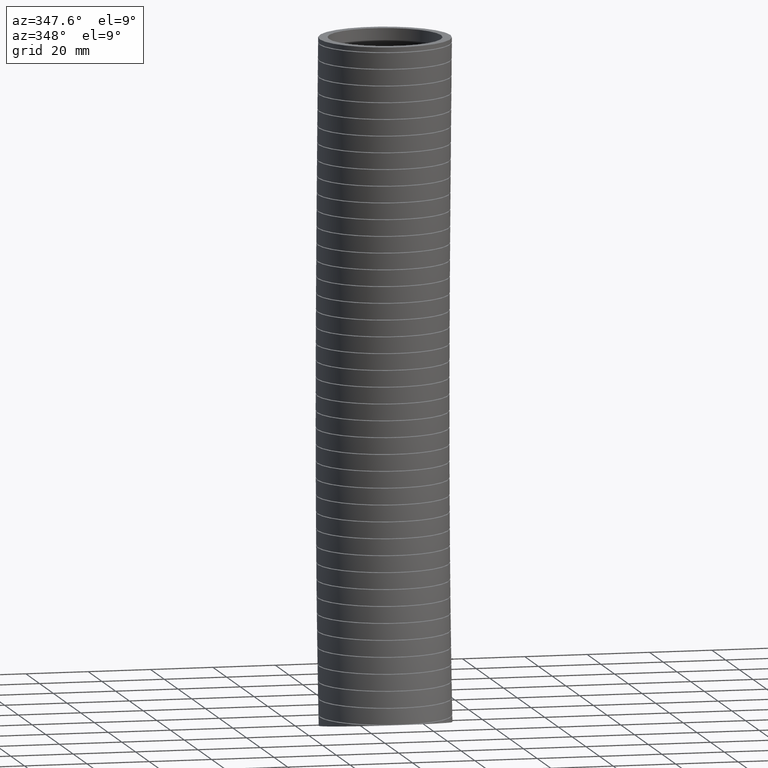
[diagram: clean part render]
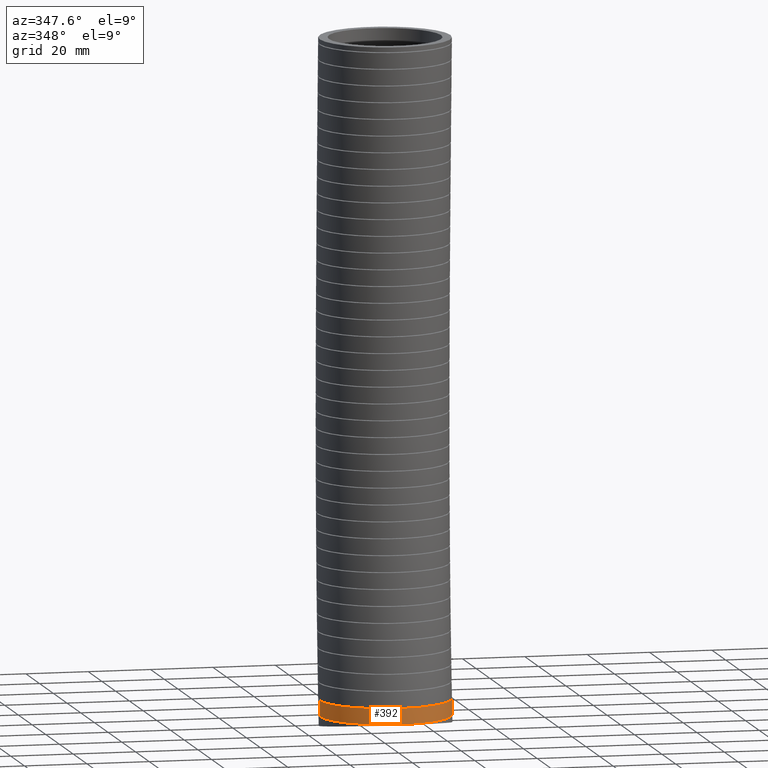
[diagram: same view with one face highlighted and labeled with its STEP entity id]
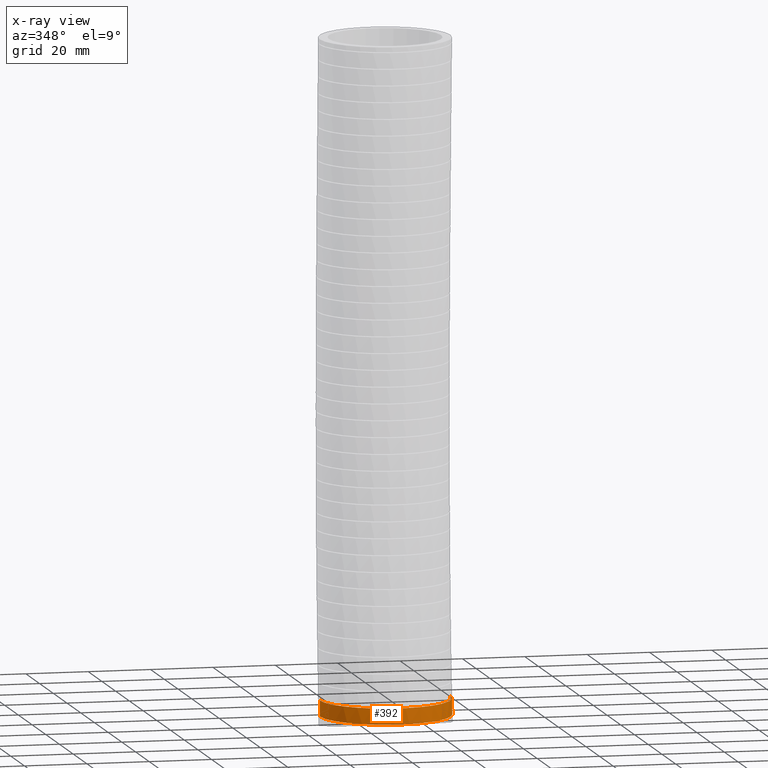
[diagram: x-ray of the same camera — body ghosted, the highlighted face saturated]
A machine part, auxiliary view. The second image highlights one B-rep face of the part: STEP entity #392.
The next image is the same camera in x-ray: the body ghosted, the highlighted face saturated — about 0% of this face is hidden behind the body in this view.
In plain terms, the highlighted face is a freeform B-spline surface patch.
Its self-contained STEP definition (entity closure, byte-faithful):
#384 = VERTEX_POINT ( 'NONE', #10039 ) ;
#391 = EDGE_LOOP ( 'NONE', ( #14294, #14291, #14284, #14384 ) ) ;
#392 = ADVANCED_FACE ( 'NONE', ( #10067 ), #10091, .T. ) ;
#420 = EDGE_CURVE ( 'NONE', #384, #14385, #10378, .T. ) ;
#3013 = CARTESIAN_POINT ( 'NONE',  ( 0.2660114866178837100, -0.7852401986511705600, -8.253512052485426400 ) ) ;
#3014 = CARTESIAN_POINT ( 'NONE',  ( 0.3166884821591571300, -0.7669987444412618100, -8.253512052485421100 ) ) ;
#3015 = CARTESIAN_POINT ( 'NONE',  ( 0.2272468018940634900, -0.7970709957435805300, -8.253512052485424600 ) ) ;
#3226 = CARTESIAN_POINT ( 'NONE',  ( 0.1878457246934009100, -0.8073461663525042200, -8.253512052485426400 ) ) ;
#3227 = CARTESIAN_POINT ( 'NONE',  ( 0.1078240802176524300, -0.8236799574446376200, -8.253512052485426400 ) ) ;
#3228 = CARTESIAN_POINT ( 'NONE',  ( 0.1745063647585848600, -0.8103576946499535500, -8.253512052485426400 ) ) ;
#3241 = CARTESIAN_POINT ( 'NONE',  ( 0.2141988600702511600, -0.8007056651911342900, -8.253512052485426400 ) ) ;
#3446 = B_SPLINE_CURVE_WITH_KNOTS ( 'NONE', 3,
 ( #3535, #3534, #3533, #3532, #3531, #3530, #3529, #3528, #3527, #3526, #3525, #3524, #3523, #3522, #3521, #3520, #3519, #3518, #3517, #3516, #3515, #3514, #3513, #3512, #3511, #3510, #3509, #3508, #3507, #3506, #3505, #3504, #3503, #3502, #3501, #3500, #3499, #3498, #3497, #3496, #3495, #3494, #3493, #3492, #3491, #3490, #3489, #3488, #3487, #3486, #3567, #3566, #3565, #3564, #3563, #3562, #3561 ),
 .UNSPECIFIED., .F., .F.,
 ( 4, 2, 2, 1, 2, 2, 2, 2, 2, 2, 2, 2, 2, 2, 2, 2, 2, 2, 2, 2, 2, 2, 2, 2, 2, 2, 2, 2, 4 ),
 ( 0.06561303583584253400, 0.06971303511565171700, 0.07176303475555631500, 0.07381303439546091400, 0.07586303403536551200, 0.07688803385531782500, 0.07791303367527012400, 0.08201303295507932100, 0.08406303259498393300, 0.08508803241493624600, 0.08611303223488854500, 0.09021303151469778300, 0.09123803133465008300, 0.09226303115460238200, 0.09431303079450698000, 0.09841303007431619100, 0.1004630297142208000, 0.1025130293541254000, 0.1045630289940300000, 0.1066130286339346000, 0.1107130279137437900, 0.1127630275536483900, 0.1148130271935529900, 0.1189130264733622200, 0.1209630261132668100, 0.1230130257531714100, 0.1250630253930760100, 0.1271130250329806100, 0.1312130243127898300 ),
 .UNSPECIFIED. ) ;
#3486 = CARTESIAN_POINT ( 'NONE',  ( 0.7517612862760633100, -0.3613063071378663800, -8.452678838414852800 ) ) ;
#3487 = CARTESIAN_POINT ( 'NONE',  ( 0.7402648051563509600, -0.3856885052039248900, -8.452678838414851000 ) ) ;
#3488 = CARTESIAN_POINT ( 'NONE',  ( 0.7147966364128981500, -0.4334681139840518800, -8.452678838414849200 ) ) ;
#3489 = CARTESIAN_POINT ( 'NONE',  ( 0.7007391407061752700, -0.4569805859580625700, -8.452678838414852800 ) ) ;
#3490 = CARTESIAN_POINT ( 'NONE',  ( 0.6555886164041525600, -0.5246758009390567500, -8.452678838414854600 ) ) ;
#3491 = CARTESIAN_POINT ( 'NONE',  ( 0.6214679751755489700, -0.5663151874723301200, -8.452678838414845700 ) ) ;
#3492 = CARTESIAN_POINT ( 'NONE',  ( 0.5643481398266109200, -0.6236176357193743400, -8.452678838414845700 ) ) ;
#3493 = CARTESIAN_POINT ( 'NONE',  ( 0.5443114100527342000, -0.6418529591773410900, -8.452678838414849200 ) ) ;
#3494 = CARTESIAN_POINT ( 'NONE',  ( 0.5021713740973236000, -0.6765292299208696100, -8.452678838414849200 ) ) ;
#3495 = CARTESIAN_POINT ( 'NONE',  ( 0.4804072588000127800, -0.6926898628249683600, -8.452678838414849200 ) ) ;
#3496 = CARTESIAN_POINT ( 'NONE',  ( 0.4131666543945550200, -0.7377083666195927100, -8.452678838414849200 ) ) ;
#3497 = CARTESIAN_POINT ( 'NONE',  ( 0.3657319659583045900, -0.7631585773129367900, -8.452678838414852800 ) ) ;
#3498 = CARTESIAN_POINT ( 'NONE',  ( 0.2905986064364031200, -0.7943684153911645400, -8.452678838414852800 ) ) ;
#3499 = CARTESIAN_POINT ( 'NONE',  ( 0.2648056543302631500, -0.8036117436114409400, -8.452678838414845700 ) ) ;
#3500 = CARTESIAN_POINT ( 'NONE',  ( 0.2129877701141346700, -0.8193371267619337100, -8.452678838414847500 ) ) ;
#3501 = CARTESIAN_POINT ( 'NONE',  ( 0.1868358130670306800, -0.8258808188212677400, -8.452678838414852800 ) ) ;
#3502 = CARTESIAN_POINT ( 'NONE',  ( 0.1340546719176144200, -0.8363779825308986800, -8.452678838414852800 ) ) ;
#3503 = CARTESIAN_POINT ( 'NONE',  ( 0.1074254789561544700, -0.8403314060968639600, -8.452678838414845700 ) ) ;
#3504 = CARTESIAN_POINT ( 'NONE',  ( 0.05368476953004903300, -0.8456203710947584100, -8.452678838414845700 ) ) ;
#3505 = CARTESIAN_POINT ( 'NONE',  ( 0.02646815025527477600, -0.8469551714716091500, -8.452678838414845700 ) ) ;
#3506 = CARTESIAN_POINT ( 'NONE',  ( -0.05521592254321496000, -0.8468797017051454800, -8.452678838414845700 ) ) ;
#3507 = CARTESIAN_POINT ( 'NONE',  ( -0.1088322865032980000, -0.8414744121427374400, -8.452678838414854600 ) ) ;
#3508 = CARTESIAN_POINT ( 'NONE',  ( -0.1880390232818968400, -0.8256000622703376600, -8.452678838414851000 ) ) ;
#3509 = CARTESIAN_POINT ( 'NONE',  ( -0.2142368153969360900, -0.8190047375225644200, -8.452678838414852800 ) ) ;
#3510 = CARTESIAN_POINT ( 'NONE',  ( -0.2532185180556310600, -0.8071029722906075700, -8.452678838414852800 ) ) ;
#3511 = CARTESIAN_POINT ( 'NONE',  ( -0.2661926652453043300, -0.8027873317187731500, -8.452678838414849200 ) ) ;
#3512 = CARTESIAN_POINT ( 'NONE',  ( -0.2917797609786926300, -0.7935644118246439900, -8.452678838414851000 ) ) ;
#3513 = CARTESIAN_POINT ( 'NONE',  ( -0.3044119531444088300, -0.7886531854490621600, -8.452678838414843900 ) ) ;
#3514 = CARTESIAN_POINT ( 'NONE',  ( -0.3667810429785858300, -0.7626259165837074900, -8.452678838414845700 ) ) ;
#3515 = CARTESIAN_POINT ( 'NONE',  ( -0.4141648982202593700, -0.7371383946844151100, -8.452678838414856300 ) ) ;
#3516 = CARTESIAN_POINT ( 'NONE',  ( -0.4702608822201095300, -0.6994569572939385300, -8.452678838414854600 ) ) ;
#3517 = CARTESIAN_POINT ( 'NONE',  ( -0.4813219781903215200, -0.6916269502831804400, -8.452678838414852800 ) ) ;
#3518 = CARTESIAN_POINT ( 'NONE',  ( -0.5031223050708373300, -0.6753689757378813500, -8.452678838414852800 ) ) ;
#3519 = CARTESIAN_POINT ( 'NONE',  ( -0.5138773077335983000, -0.6669257303277632600, -8.452678838414854600 ) ) ;
#3520 = CARTESIAN_POINT ( 'NONE',  ( -0.5453071330054176700, -0.6409705037914058500, -8.452678838414851000 ) ) ;
#3521 = CARTESIAN_POINT ( 'NONE',  ( -0.5652607172912576000, -0.6227567963804386800, -8.452678838414845700 ) ) ;
#3522 = CARTESIAN_POINT ( 'NONE',  ( -0.6222063910836058700, -0.5654613266719238400, -8.452678838414845700 ) ) ;
#3523 = CARTESIAN_POINT ( 'NONE',  ( -0.6563113387841387200, -0.5237506553831984300, -8.452678838414851000 ) ) ;
#3524 = CARTESIAN_POINT ( 'NONE',  ( -0.6939712697786273300, -0.4670857033635010800, -8.452678838414849200 ) ) ;
#3525 = CARTESIAN_POINT ( 'NONE',  ( -0.7012517559058930600, -0.4555207020711346500, -8.452678838414849200 ) ) ;
#3526 = CARTESIAN_POINT ( 'NONE',  ( -0.7151487981812959500, -0.4321911687129442200, -8.452678838414849200 ) ) ;
#3527 = CARTESIAN_POINT ( 'NONE',  ( -0.7217871383867902100, -0.4203950546688016700, -8.452678838414849200 ) ) ;
#3528 = CARTESIAN_POINT ( 'NONE',  ( -0.7407872674735331800, -0.3846192980332313600, -8.452678838414847500 ) ) ;
#3529 = CARTESIAN_POINT ( 'NONE',  ( -0.7636853620234660400, -0.3358870046315846100, -8.452678838414856300 ) ) ;
#3530 = CARTESIAN_POINT ( 'NONE',  ( -0.7817711915215694900, -0.2851169382115612500, -8.452678838414849200 ) ) ;
#3531 = CARTESIAN_POINT ( 'NONE',  ( -0.7974106436976690100, -0.2333109434613521700, -8.452678838414851000 ) ) ;
#3532 = CARTESIAN_POINT ( 'NONE',  ( -0.8040305729221762800, -0.2067406596302411600, -8.452678838414843900 ) ) ;
#3533 = CARTESIAN_POINT ( 'NONE',  ( -0.8197979521777237800, -0.1268672117540548000, -8.452678838414843900 ) ) ;
#3534 = CARTESIAN_POINT ( 'NONE',  ( -0.8249999999999998400, -0.07328256804623414800, -8.452678838414845700 ) ) ;
#3535 = CARTESIAN_POINT ( 'NONE',  ( -0.8250000000000000700, -0.01936904162359057500, -8.452678838414849200 ) ) ;
#3536 = CARTESIAN_POINT ( 'NONE',  ( 0.3653735529549982400, -0.7438881395109066000, -8.253512052485422900 ) ) ;
#3537 = CARTESIAN_POINT ( 'NONE',  ( 0.4130470368935885200, -0.7183047660253761800, -8.253512052485422900 ) ) ;
#3538 = CARTESIAN_POINT ( 'NONE',  ( 0.4365034042029406500, -0.7041863660046052700, -8.253512052485422900 ) ) ;
#3539 = CARTESIAN_POINT ( 'NONE',  ( 0.5041248593796451300, -0.6587699136254999700, -8.253512052485422900 ) ) ;
#3540 = CARTESIAN_POINT ( 'NONE',  ( 0.5456447946343462300, -0.6244862024572487300, -8.253512052485421100 ) ) ;
#3541 = CARTESIAN_POINT ( 'NONE',  ( 0.6027080793975577700, -0.5671920691930070200, -8.253512052485422900 ) ) ;
#3542 = CARTESIAN_POINT ( 'NONE',  ( 0.6208535171698110800, -0.5471089321114908100, -8.253512052485426400 ) ) ;
#3543 = CARTESIAN_POINT ( 'NONE',  ( 0.6553366577157763200, -0.5049090007335561600, -8.253512052485428200 ) ) ;
#3544 = CARTESIAN_POINT ( 'NONE',  ( 0.6714863381446203300, -0.4830093500471307500, -8.253512052485428200 ) ) ;
#3545 = CARTESIAN_POINT ( 'NONE',  ( 0.7163164712181551200, -0.4155724140561278800, -8.253512052485431700 ) ) ;
#3546 = CARTESIAN_POINT ( 'NONE',  ( 0.7416124470749966300, -0.3680701160237900800, -8.253512052485437100 ) ) ;
#3547 = CARTESIAN_POINT ( 'NONE',  ( 0.7726104292991010600, -0.2929670082533872300, -8.253512052485435300 ) ) ;
#3548 = CARTESIAN_POINT ( 'NONE',  ( 0.7818078410346915900, -0.2671543194575386500, -8.253512052485431700 ) ) ;
#3549 = CARTESIAN_POINT ( 'NONE',  ( 0.7974735176293100700, -0.2152348452504054300, -8.253512052485430000 ) ) ;
#3550 = CARTESIAN_POINT ( 'NONE',  ( 0.8039881442929452900, -0.1890507273266972000, -8.253512052485422900 ) ) ;
#3551 = CARTESIAN_POINT ( 'NONE',  ( 0.8196656148960583800, -0.1098402484963818000, -8.253512052485424600 ) ) ;
#3552 = CARTESIAN_POINT ( 'NONE',  ( 0.8250000000000001800, -0.05616222232491702200, -8.253512052485451300 ) ) ;
#3553 = CARTESIAN_POINT ( 'NONE',  ( 0.8250000000000000700, -0.001576198018707713600, -8.253512052485451300 ) ) ;
#3554 = B_SPLINE_CURVE_WITH_KNOTS ( 'NONE', 3,
 ( #3553, #3552, #3551, #3550, #3549, #3548, #3547, #3546, #3545, #3544, #3543, #3542, #3541, #3540, #3539, #3538, #3537, #3536, #3014, #3013, #3015, #3241, #3226, #3228, #3227, #3613, #3612, #3611, #3610, #3609, #3608, #3607, #3606, #3605, #3604, #3603, #3602, #3601, #3600, #3599, #3598, #3597, #3596, #3595, #3594, #3593, #3592, #3591, #3590, #3589, #3588, #3587, #3586 ),
 .UNSPECIFIED., .F., .F.,
 ( 4, 2, 2, 2, 2, 2, 2, 2, 2, 1, 2, 2, 2, 2, 2, 2, 2, 2, 2, 2, 2, 2, 2, 2, 2, 2, 4 ),
 ( 0.0000000000000000000, 0.004100476595546212600, 0.006150714893319316800, 0.008200953191092420100, 0.01230142978663862800, 0.01435166808441173600, 0.01640190638218484400, 0.02050238297773106200, 0.02255262127550417700, 0.02460285957327728800, 0.02665309787105040600, 0.02767821701993697000, 0.02870333616882353100, 0.03280381276436977100, 0.03485405106214289200, 0.03587917021102944600, 0.03690428935991601400, 0.04100476595546224300, 0.04305500425323536400, 0.04510524255100848600, 0.04920571914655472200, 0.05330619574210095800, 0.05535643403987408600, 0.05740667233764720800, 0.06150714893319343700, 0.06355738723096655800, 0.06560762552873968000 ),
 .UNSPECIFIED. ) ;
#3555 = CARTESIAN_POINT ( 'NONE',  ( -0.8250000000000000700, -0.01936904162359057500, -8.452678838414849200 ) ) ;
#3556 = CARTESIAN_POINT ( 'NONE',  ( -0.8250000000000000700, -0.01337053473200914200, -8.386292782602767600 ) ) ;
#3557 = CARTESIAN_POINT ( 'NONE',  ( -0.8250000000000000700, -0.007415173310095325000, -8.319904892103979300 ) ) ;
#3558 = CARTESIAN_POINT ( 'NONE',  ( -0.8250000000000000700, -0.001576198018703033700, -8.253512052485426400 ) ) ;
#3559 = CARTESIAN_POINT ( 'NONE',  ( -0.8250000000000000700, -0.01936904162359057500, -8.452678838414849200 ) ) ;
#3560 = B_SPLINE_CURVE_WITH_KNOTS ( 'NONE', 3,
 ( #3558, #3557, #3556, #3555 ),
 .UNSPECIFIED., .F., .F.,
 ( 4, 4 ),
 ( 0.9629347331867588200, 0.9862595453808190600 ),
 .UNSPECIFIED. ) ;
#3561 = CARTESIAN_POINT ( 'NONE',  ( 0.8250000000000001800, -0.01936904162359084600, -8.452678838414849200 ) ) ;
#3562 = CARTESIAN_POINT ( 'NONE',  ( 0.8250000000000001800, -0.07394850050133734700, -8.452678838414849200 ) ) ;
#3563 = CARTESIAN_POINT ( 'NONE',  ( 0.8196691510033966600, -0.1279652428689745100, -8.452678838414852800 ) ) ;
#3564 = CARTESIAN_POINT ( 'NONE',  ( 0.8037070400857240200, -0.2081485590699897700, -8.452678838414851000 ) ) ;
#3565 = CARTESIAN_POINT ( 'NONE',  ( 0.7970761385703133400, -0.2345543257309841700, -8.452678838414849200 ) ) ;
#3566 = CARTESIAN_POINT ( 'NONE',  ( 0.7813932852432323700, -0.2862271267928764300, -8.452678838414852800 ) ) ;
#3567 = CARTESIAN_POINT ( 'NONE',  ( 0.7723255531828545600, -0.3115756286202137600, -8.452678838414849200 ) ) ;
#3585 = CARTESIAN_POINT ( 'NONE',  ( -0.8250000000000000700, -0.001576198018703033700, -8.253512052485426400 ) ) ;
#3586 = CARTESIAN_POINT ( 'NONE',  ( -0.8250000000000000700, -0.001576198018703033700, -8.253512052485426400 ) ) ;
#3587 = CARTESIAN_POINT ( 'NONE',  ( -0.8249999999999999600, -0.02853608689209442100, -8.253512052485422900 ) ) ;
#3588 = CARTESIAN_POINT ( 'NONE',  ( -0.8236892456196286400, -0.05557892722560254400, -8.253512052485428200 ) ) ;
#3589 = CARTESIAN_POINT ( 'NONE',  ( -0.8183578504319968200, -0.1098361038183455200, -8.253512052485428200 ) ) ;
#3590 = CARTESIAN_POINT ( 'NONE',  ( -0.8143629334516334600, -0.1367249430654125000, -8.253512052485422900 ) ) ;
#3591 = CARTESIAN_POINT ( 'NONE',  ( -0.7985892902581494000, -0.2161397829348680500, -8.253512052485421100 ) ) ;
#3592 = CARTESIAN_POINT ( 'NONE',  ( -0.7830340021336251700, -0.2676683183112151800, -8.253512052485426400 ) ) ;
#3593 = CARTESIAN_POINT ( 'NONE',  ( -0.7520463609820413600, -0.3428122983622542400, -8.253512052485426400 ) ) ;
#3594 = CARTESIAN_POINT ( 'NONE',  ( -0.7403654532473147300, -0.3676033006954446100, -8.253512052485422900 ) ) ;
#3595 = CARTESIAN_POINT ( 'NONE',  ( -0.7148722545493820800, -0.4154457377742035200, -8.253512052485428200 ) ) ;
#3596 = CARTESIAN_POINT ( 'NONE',  ( -0.7010298665548992900, -0.4386008551753409800, -8.253512052485421100 ) ) ;
#3597 = CARTESIAN_POINT ( 'NONE',  ( -0.6562815469420958400, -0.5058141937224798200, -8.253512052485424600 ) ) ;
#3598 = CARTESIAN_POINT ( 'NONE',  ( -0.6221224697009103400, -0.5477067324698897700, -8.253512052485421100 ) ) ;
#3599 = CARTESIAN_POINT ( 'NONE',  ( -0.5451368280800793500, -0.6249886185105390000, -8.253512052485421100 ) ) ;
#3600 = CARTESIAN_POINT ( 'NONE',  ( -0.5034765541459772500, -0.6592318427337920900, -8.253512052485431700 ) ) ;
#3601 = CARTESIAN_POINT ( 'NONE',  ( -0.4364064059038842400, -0.7042381328792124400, -8.253512052485428200 ) ) ;
#3602 = CARTESIAN_POINT ( 'NONE',  ( -0.4132807832183860200, -0.7181726731390303300, -8.253512052485428200 ) ) ;
#3603 = CARTESIAN_POINT ( 'NONE',  ( -0.3654526065601439400, -0.7438523288770472200, -8.253512052485426400 ) ) ;
#3604 = CARTESIAN_POINT ( 'NONE',  ( -0.3407101442258594900, -0.7555949493008077300, -8.253512052485422900 ) ) ;
#3605 = CARTESIAN_POINT ( 'NONE',  ( -0.2657386831681262700, -0.7867418078153598500, -8.253512052485422900 ) ) ;
#3606 = CARTESIAN_POINT ( 'NONE',  ( -0.2142519724278507700, -0.8024105093783966400, -8.253512052485430000 ) ) ;
#3607 = CARTESIAN_POINT ( 'NONE',  ( -0.1480187011743164000, -0.8156512128309034700, -8.253512052485430000 ) ) ;
#3608 = CARTESIAN_POINT ( 'NONE',  ( -0.1346774581393515000, -0.8179792363181480600, -8.253512052485428200 ) ) ;
#3609 = CARTESIAN_POINT ( 'NONE',  ( -0.1078025082052426100, -0.8219839270624870200, -8.253512052485428200 ) ) ;
#3610 = CARTESIAN_POINT ( 'NONE',  ( -0.09423237815913035300, -0.8236632217149517700, -8.253512052485424600 ) ) ;
#3611 = CARTESIAN_POINT ( 'NONE',  ( -0.05362004168180896400, -0.8276665990515816900, -8.253512052485424600 ) ) ;
#3612 = CARTESIAN_POINT ( 'NONE',  ( -0.02661347977902617900, -0.8289760273084709800, -8.253512052485424600 ) ) ;
#3613 = CARTESIAN_POINT ( 'NONE',  ( 0.05420715357854194400, -0.8289439241214984200, -8.253512052485426400 ) ) ;
#4279 = CARTESIAN_POINT ( 'NONE',  ( 0.8250000000000001800, -0.01936904162359084600, -8.452678838414849200 ) ) ;
#10039 = CARTESIAN_POINT ( 'NONE',  ( 0.8250000000000000700, -0.001576198018707713600, -8.253512052485451300 ) ) ;
#10067 = FACE_OUTER_BOUND ( 'NONE', #391, .T. ) ;
#10073 = CARTESIAN_POINT ( 'NONE',  ( -0.8250000000000000700, -1.665025278502830100, -8.348206540545621800 ) ) ;
#10074 = CARTESIAN_POINT ( 'NONE',  ( -0.8250000000000000700, -1.648591599368976800, -8.166663012797107200 ) ) ;
#10075 = CARTESIAN_POINT ( 'NONE',  ( -0.8250000000000000700, -1.540263497031813400, -6.969958021029444100 ) ) ;
#10076 = CARTESIAN_POINT ( 'NONE',  ( -0.8250000000000002900, -1.462666226150585200, -4.236240238818020000 ) ) ;
#10077 = CARTESIAN_POINT ( 'NONE',  ( -0.8250000000000002900, -1.579745949996089300, -1.588677938051519200 ) ) ;
#10078 = CARTESIAN_POINT ( 'NONE',  ( -0.8250000000000000700, -1.649999999999999900, 0.0000000000000000000 ) ) ;
#10079 = CARTESIAN_POINT ( 'NONE',  ( 0.8249999999999999600, -1.665025278502830100, -8.348206540545621800 ) ) ;
#10080 = CARTESIAN_POINT ( 'NONE',  ( 0.8250000000000000700, -1.648591599368976800, -8.166663012797107200 ) ) ;
#10081 = CARTESIAN_POINT ( 'NONE',  ( 0.8250000000000000700, -1.540263497031813400, -6.969958021029444100 ) ) ;
#10082 = CARTESIAN_POINT ( 'NONE',  ( 0.8250000000000000700, -1.462666226150585200, -4.236240238818020000 ) ) ;
#10083 = CARTESIAN_POINT ( 'NONE',  ( 0.8250000000000000700, -1.579745949996089300, -1.588677938051519200 ) ) ;
#10084 = CARTESIAN_POINT ( 'NONE',  ( 0.8249999999999999600, -1.649999999999999900, 0.0000000000000000000 ) ) ;
#10085 = CARTESIAN_POINT ( 'NONE',  ( 0.8249999999999999600, -0.03000000000000003000, -8.570000000000000300 ) ) ;
#10086 = CARTESIAN_POINT ( 'NONE',  ( 0.8250000000000000700, -0.01276117587204244800, -8.380024330009550900 ) ) ;
#10087 = CARTESIAN_POINT ( 'NONE',  ( 0.8250000000000000700, 0.1008743094684736900, -7.127736047350903300 ) ) ;
#10088 = CARTESIAN_POINT ( 'NONE',  ( 0.8249999999999999600, 0.1896261967179030400, -4.274418168908688600 ) ) ;
#10089 = CARTESIAN_POINT ( 'NONE',  ( 0.8249999999999999600, 0.07111375611842187000, -1.602995453545504200 ) ) ;
#10090 = CARTESIAN_POINT ( 'NONE',  ( 0.8249999999999999600, 0.0000000000000000000, 0.0000000000000000000 ) ) ;
#10091 =( BOUNDED_SURFACE ( )  B_SPLINE_SURFACE ( 3, 3, ( 
 ( #10090, #10089, #10088, #10087, #10086, #10085 ),
 ( #10084, #10083, #10082, #10081, #10080, #10079 ),
 ( #10078, #10077, #10076, #10075, #10074, #10073 ),
 ( #10124, #10123, #10122, #10121, #10120, #10119 ),
 ( #10118, #10117, #10116, #10115, #10114, #10113 ),
 ( #10112, #10111, #10110, #10109, #10108, #10107 ),
 ( #10106, #10105, #10104, #10103, #10102, #10101 ) ),
 .UNSPECIFIED., .F., .F., .F. ) 
 B_SPLINE_SURFACE_WITH_KNOTS ( ( 4, 3, 4 ),
 ( 4, 1, 1, 4 ),
 ( 0.0000000000000000000, 0.5000000000000000000, 1.000000000000000000 ),
 ( 0.0000000000000000000, 0.5600000000000000500, 0.9332507570714188000, 1.000000000000000000 ),
 .UNSPECIFIED. ) 
 GEOMETRIC_REPRESENTATION_ITEM ( )  RATIONAL_B_SPLINE_SURFACE ( (
 ( 1.000000000000000000, 1.000000000000000000, 1.000000000000000000, 1.000000000000000000, 1.000000000000000000, 1.000000000000000000),
 ( 0.3333333333333333100, 0.3333333333333333100, 0.3333333333333333100, 0.3333333333333333100, 0.3333333333333333100, 0.3333333333333333100),
 ( 0.3333333333333333100, 0.3333333333333333100, 0.3333333333333333100, 0.3333333333333333100, 0.3333333333333333100, 0.3333333333333333100),
 ( 1.000000000000000000, 1.000000000000000000, 1.000000000000000000, 1.000000000000000000, 1.000000000000000000, 1.000000000000000000),
 ( 0.3333333333333333100, 0.3333333333333333100, 0.3333333333333333100, 0.3333333333333333100, 0.3333333333333333100, 0.3333333333333333100),
 ( 0.3333333333333333100, 0.3333333333333333100, 0.3333333333333333100, 0.3333333333333333100, 0.3333333333333333100, 0.3333333333333333100),
 ( 1.000000000000000000, 1.000000000000000000, 1.000000000000000000, 1.000000000000000000, 1.000000000000000000, 1.000000000000000000) ) ) 
 REPRESENTATION_ITEM ( '' )  SURFACE ( )  );
#10101 = CARTESIAN_POINT ( 'NONE',  ( 0.8249999999999999600, -0.03000000000000003000, -8.570000000000000300 ) ) ;
#10102 = CARTESIAN_POINT ( 'NONE',  ( 0.8250000000000000700, -0.01276117587204244800, -8.380024330009550900 ) ) ;
#10103 = CARTESIAN_POINT ( 'NONE',  ( 0.8250000000000000700, 0.1008743094684736900, -7.127736047350903300 ) ) ;
#10104 = CARTESIAN_POINT ( 'NONE',  ( 0.8249999999999999600, 0.1896261967179030400, -4.274418168908688600 ) ) ;
#10105 = CARTESIAN_POINT ( 'NONE',  ( 0.8249999999999999600, 0.07111375611842187000, -1.602995453545504200 ) ) ;
#10106 = CARTESIAN_POINT ( 'NONE',  ( 0.8249999999999999600, 0.0000000000000000000, 0.0000000000000000000 ) ) ;
#10107 = CARTESIAN_POINT ( 'NONE',  ( 0.8249999999999999600, 1.605025278502830500, -8.791793459454378700 ) ) ;
#10108 = CARTESIAN_POINT ( 'NONE',  ( 0.8250000000000000700, 1.623069247624891800, -8.593385647221989400 ) ) ;
#10109 = CARTESIAN_POINT ( 'NONE',  ( 0.8250000000000000700, 1.742012115968760700, -7.285514073672365100 ) ) ;
#10110 = CARTESIAN_POINT ( 'NONE',  ( 0.8250000000000000700, 1.841918619586391700, -4.312596098999357300 ) ) ;
#10111 = CARTESIAN_POINT ( 'NONE',  ( 0.8250000000000000700, 1.721973462232933500, -1.617312969039488500 ) ) ;
#10112 = CARTESIAN_POINT ( 'NONE',  ( 0.8249999999999999600, 1.649999999999999900, 0.0000000000000000000 ) ) ;
#10113 = CARTESIAN_POINT ( 'NONE',  ( -0.8249999999999997300, 1.605025278502830500, -8.791793459454378700 ) ) ;
#10114 = CARTESIAN_POINT ( 'NONE',  ( -0.8249999999999997300, 1.623069247624891800, -8.593385647221989400 ) ) ;
#10115 = CARTESIAN_POINT ( 'NONE',  ( -0.8249999999999997300, 1.742012115968760700, -7.285514073672365100 ) ) ;
#10116 = CARTESIAN_POINT ( 'NONE',  ( -0.8249999999999999600, 1.841918619586391700, -4.312596098999357300 ) ) ;
#10117 = CARTESIAN_POINT ( 'NONE',  ( -0.8249999999999999600, 1.721973462232933500, -1.617312969039488500 ) ) ;
#10118 = CARTESIAN_POINT ( 'NONE',  ( -0.8249999999999997300, 1.649999999999999900, 0.0000000000000000000 ) ) ;
#10119 = CARTESIAN_POINT ( 'NONE',  ( -0.8249999999999999600, -0.02999999999999993300, -8.570000000000000300 ) ) ;
#10120 = CARTESIAN_POINT ( 'NONE',  ( -0.8250000000000000700, -0.01276117587204234900, -8.380024330009550900 ) ) ;
#10121 = CARTESIAN_POINT ( 'NONE',  ( -0.8250000000000000700, 0.1008743094684737700, -7.127736047350903300 ) ) ;
#10122 = CARTESIAN_POINT ( 'NONE',  ( -0.8249999999999999600, 0.1896261967179031200, -4.274418168908688600 ) ) ;
#10123 = CARTESIAN_POINT ( 'NONE',  ( -0.8249999999999999600, 0.07111375611842195300, -1.602995453545504200 ) ) ;
#10124 = CARTESIAN_POINT ( 'NONE',  ( -0.8249999999999999600, 1.010333609296566300E-016, 0.0000000000000000000 ) ) ;
#10370 = CARTESIAN_POINT ( 'NONE',  ( 0.8250000000000001800, -0.01936904162359084600, -8.452678838414849200 ) ) ;
#10371 = CARTESIAN_POINT ( 'NONE',  ( 0.8250000000000000700, -0.01337053473201010000, -8.386292782602778200 ) ) ;
#10372 = CARTESIAN_POINT ( 'NONE',  ( 0.8250000000000000700, -0.007415173310097131700, -8.319904892104000600 ) ) ;
#10373 = CARTESIAN_POINT ( 'NONE',  ( 0.8250000000000000700, -0.001576198018707713600, -8.253512052485451300 ) ) ;
#10378 = B_SPLINE_CURVE_WITH_KNOTS ( 'NONE', 3,
 ( #10373, #10372, #10371, #10370 ),
 .UNSPECIFIED., .F., .F.,
 ( 4, 4 ),
 ( 0.9629347331867621500, 0.9862595453808190600 ),
 .UNSPECIFIED. ) ;
#14284 = ORIENTED_EDGE ( 'NONE', *, *, #14287, .T. ) ;
#14287 = EDGE_CURVE ( 'NONE', #14290, #14385, #3446, .T. ) ;
#14289 = EDGE_CURVE ( 'NONE', #14293, #14290, #3560, .T. ) ;
#14290 = VERTEX_POINT ( 'NONE', #3559 ) ;
#14291 = ORIENTED_EDGE ( 'NONE', *, *, #14289, .T. ) ;
#14292 = EDGE_CURVE ( 'NONE', #384, #14293, #3554, .T. ) ;
#14293 = VERTEX_POINT ( 'NONE', #3585 ) ;
#14294 = ORIENTED_EDGE ( 'NONE', *, *, #14292, .T. ) ;
#14384 = ORIENTED_EDGE ( 'NONE', *, *, #420, .F. ) ;
#14385 = VERTEX_POINT ( 'NONE', #4279 ) ;